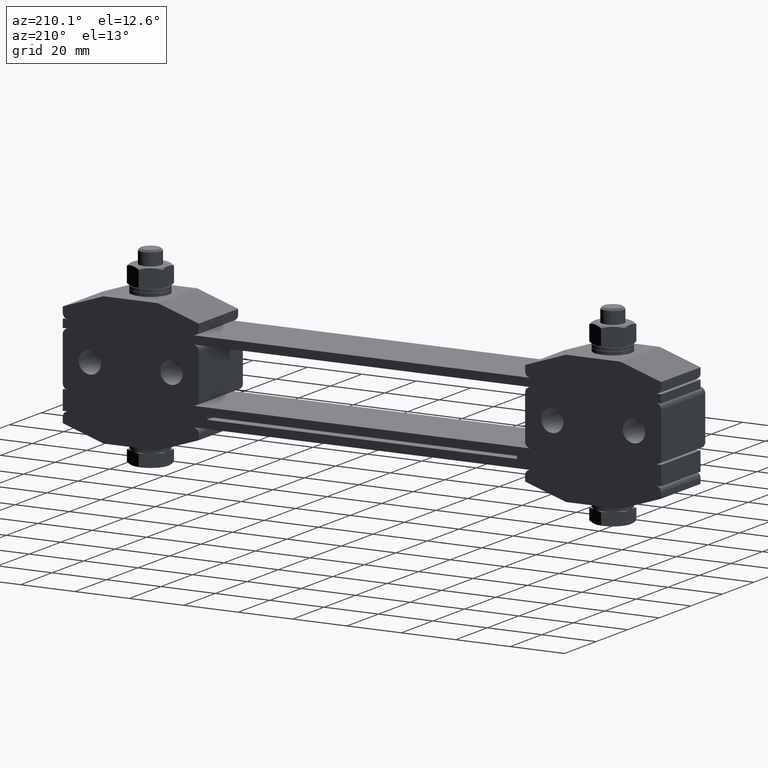
[diagram: clean part render]
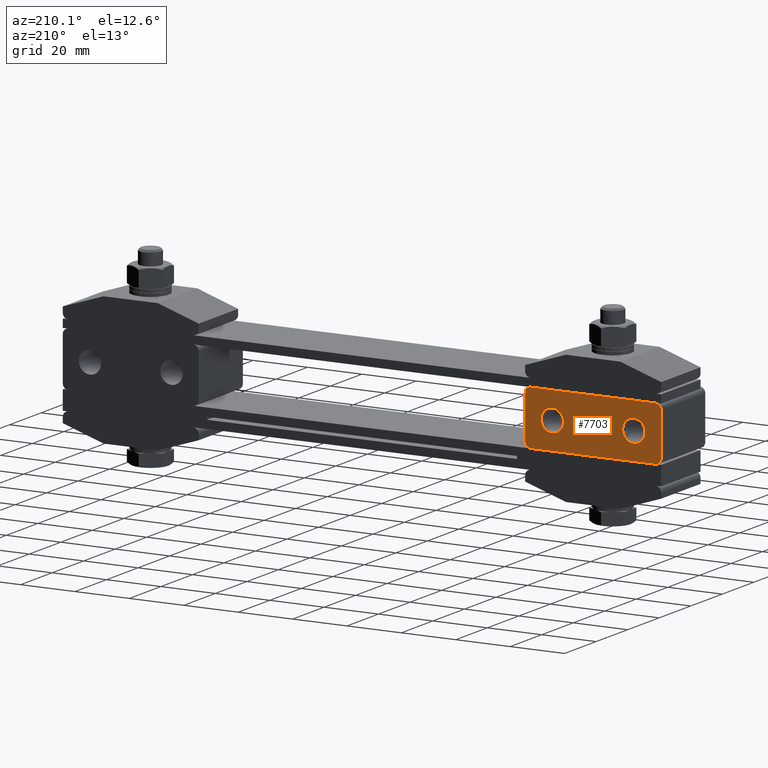
[diagram: same view with one face highlighted and labeled with its STEP entity id]
A machine part, auxiliary view. The second image highlights one B-rep face of the part: STEP entity #7703.
In plain terms, the highlighted planar face has unit normal (0, -1, 0).
Its self-contained STEP definition (entity closure, byte-faithful):
#303 = DIRECTION ( 'NONE',  ( 0.0000000000000000000, 0.0000000000000000000, -1.000000000000000000 ) ) ;
#580 = VECTOR ( 'NONE', #20998, 1000.000000000000000 ) ;
#686 = EDGE_LOOP ( 'NONE', ( #9995, #20720, #13385, #13030, #21070, #3321, #17903, #16423 ) ) ;
#725 = FACE_BOUND ( 'NONE', #20123, .T. ) ;
#752 = PLANE ( 'NONE',  #10879 ) ;
#813 = LINE ( 'NONE', #4874, #8814 ) ;
#874 = LINE ( 'NONE', #6729, #2200 ) ;
#938 = CARTESIAN_POINT ( 'NONE',  ( -108.0000000000000000, 12.50000000000000000, 21.00000000000000000 ) ) ;
#1806 = DIRECTION ( 'NONE',  ( 0.0000000000000000000, 0.0000000000000000000, -1.000000000000000000 ) ) ;
#1822 = CARTESIAN_POINT ( 'NONE',  ( -62.00000000000000000, 12.50000000000000000, 21.00000000000000000 ) ) ;
#2200 = VECTOR ( 'NONE', #15225, 1000.000000000000000 ) ;
#2491 = CIRCLE ( 'NONE', #20456, 4.100000000000001400 ) ;
#2528 = EDGE_CURVE ( 'NONE', #12375, #6076, #2491, .T. ) ;
#2570 = AXIS2_PLACEMENT_3D ( 'NONE', #17997, #12957, #7896 ) ;
#2633 = VERTEX_POINT ( 'NONE', #21164 ) ;
#2727 = VERTEX_POINT ( 'NONE', #4342 ) ;
#2893 = EDGE_CURVE ( 'NONE', #2633, #6873, #14211, .T. ) ;
#3250 = CIRCLE ( 'NONE', #11405, 2.000000000000000000 ) ;
#3321 = ORIENTED_EDGE ( 'NONE', *, *, #17572, .T. ) ;
#3382 = CARTESIAN_POINT ( 'NONE',  ( -62.00000000000000000, 12.50000000000000000, 3.000000000000000000 ) ) ;
#3397 = CARTESIAN_POINT ( 'NONE',  ( -60.00000000000000000, 12.50000000000000000, 3.000000000000000000 ) ) ;
#3492 = VERTEX_POINT ( 'NONE', #12404 ) ;
#3903 = DIRECTION ( 'NONE',  ( -2.386979502944085000E-015, 1.000000000000000000, -0.0000000000000000000 ) ) ;
#4277 = DIRECTION ( 'NONE',  ( 0.0000000000000000000, 0.0000000000000000000, 1.000000000000000000 ) ) ;
#4342 = CARTESIAN_POINT ( 'NONE',  ( -62.00000000000000000, 12.50000000000000000, 23.00000000000000000 ) ) ;
#4643 = CARTESIAN_POINT ( 'NONE',  ( -60.00000000000000000, 12.50000000000000000, 23.00000000000000000 ) ) ;
#4874 = CARTESIAN_POINT ( 'NONE',  ( -60.00000000000000000, 12.50000000000000000, 3.000000000000000000 ) ) ;
#5110 = CARTESIAN_POINT ( 'NONE',  ( -100.0000000000000000, 12.50000000000000000, 13.00000000000000000 ) ) ;
#5254 = DIRECTION ( 'NONE',  ( 0.0000000000000000000, 0.0000000000000000000, 1.000000000000000000 ) ) ;
#5317 = DIRECTION ( 'NONE',  ( 1.000000000000000000, -2.386979502944085000E-015, 0.0000000000000000000 ) ) ;
#5337 = CARTESIAN_POINT ( 'NONE',  ( -108.0000000000000000, 12.50000000000000000, 23.00000000000000000 ) ) ;
#5460 = CARTESIAN_POINT ( 'NONE',  ( -60.00000000000000000, 12.50000000000000000, 21.00000000000000000 ) ) ;
#5516 = EDGE_CURVE ( 'NONE', #19903, #2727, #9910, .T. ) ;
#5553 = DIRECTION ( 'NONE',  ( -2.386979502944085000E-015, 1.000000000000000000, 0.0000000000000000000 ) ) ;
#5572 = CIRCLE ( 'NONE', #2570, 2.000000000000000000 ) ;
#5625 = DIRECTION ( 'NONE',  ( 0.0000000000000000000, 0.0000000000000000000, -1.000000000000000000 ) ) ;
#5715 = CARTESIAN_POINT ( 'NONE',  ( -108.0000000000000000, 12.50000000000000000, 3.000000000000000000 ) ) ;
#6076 = VERTEX_POINT ( 'NONE', #20461 ) ;
#6344 = CARTESIAN_POINT ( 'NONE',  ( -70.00000000000000000, 12.50000000000000000, 8.899999999999998600 ) ) ;
#6729 = CARTESIAN_POINT ( 'NONE',  ( -60.00000000000000000, 12.50000000000000000, 3.000000000000000000 ) ) ;
#6873 = VERTEX_POINT ( 'NONE', #6344 ) ;
#7486 = DIRECTION ( 'NONE',  ( 0.0000000000000000000, 0.0000000000000000000, 1.000000000000000000 ) ) ;
#7703 = ADVANCED_FACE ( 'NONE', ( #20169, #725, #11128 ), #752, .F. ) ;
#7896 = DIRECTION ( 'NONE',  ( 0.0000000000000000000, 0.0000000000000000000, 1.000000000000000000 ) ) ;
#8057 = LINE ( 'NONE', #14323, #580 ) ;
#8290 = AXIS2_PLACEMENT_3D ( 'NONE', #10372, #20552, #1806 ) ;
#8335 = VERTEX_POINT ( 'NONE', #10083 ) ;
#8814 = VECTOR ( 'NONE', #5317, 1000.000000000000000 ) ;
#9040 = CARTESIAN_POINT ( 'NONE',  ( -62.00000000000000000, 12.50000000000000000, 5.000000000000000000 ) ) ;
#9910 = LINE ( 'NONE', #4643, #13119 ) ;
#9995 = ORIENTED_EDGE ( 'NONE', *, *, #10530, .T. ) ;
#10083 = CARTESIAN_POINT ( 'NONE',  ( -110.0000000000000000, 12.50000000000000000, 21.00000000000000000 ) ) ;
#10278 = EDGE_CURVE ( 'NONE', #2727, #15367, #19210, .T. ) ;
#10372 = CARTESIAN_POINT ( 'NONE',  ( -100.0000000000000000, 12.50000000000000000, 13.00000000000000000 ) ) ;
#10530 = EDGE_CURVE ( 'NONE', #19518, #8335, #8057, .T. ) ;
#10879 = AXIS2_PLACEMENT_3D ( 'NONE', #3397, #17041, #13321 ) ;
#11128 = FACE_OUTER_BOUND ( 'NONE', #686, .T. ) ;
#11405 = AXIS2_PLACEMENT_3D ( 'NONE', #9040, #3903, #7486 ) ;
#11511 = CARTESIAN_POINT ( 'NONE',  ( -70.00000000000000000, 12.50000000000000000, 13.00000000000000000 ) ) ;
#11835 = ORIENTED_EDGE ( 'NONE', *, *, #2528, .F. ) ;
#12156 = EDGE_CURVE ( 'NONE', #6873, #2633, #13580, .T. ) ;
#12375 = VERTEX_POINT ( 'NONE', #20820 ) ;
#12404 = CARTESIAN_POINT ( 'NONE',  ( -60.00000000000000000, 12.50000000000000000, 5.000000000000000000 ) ) ;
#12449 = EDGE_CURVE ( 'NONE', #18325, #19518, #5572, .T. ) ;
#12957 = DIRECTION ( 'NONE',  ( -2.386979502944085000E-015, 1.000000000000000000, -0.0000000000000000000 ) ) ;
#13030 = ORIENTED_EDGE ( 'NONE', *, *, #10278, .T. ) ;
#13119 = VECTOR ( 'NONE', #19797, 1000.000000000000000 ) ;
#13321 = DIRECTION ( 'NONE',  ( 0.0000000000000000000, 0.0000000000000000000, 1.000000000000000000 ) ) ;
#13385 = ORIENTED_EDGE ( 'NONE', *, *, #5516, .T. ) ;
#13444 = DIRECTION ( 'NONE',  ( 0.0000000000000000000, 0.0000000000000000000, -1.000000000000000000 ) ) ;
#13579 = ORIENTED_EDGE ( 'NONE', *, *, #12156, .F. ) ;
#13580 = CIRCLE ( 'NONE', #16713, 4.100000000000001400 ) ;
#13747 = DIRECTION ( 'NONE',  ( -2.386979502944085000E-015, 1.000000000000000000, -0.0000000000000000000 ) ) ;
#14211 = CIRCLE ( 'NONE', #20328, 4.100000000000001400 ) ;
#14323 = CARTESIAN_POINT ( 'NONE',  ( -110.0000000000000000, 12.50000000000000000, 3.000000000000000000 ) ) ;
#14492 = DIRECTION ( 'NONE',  ( -2.386979502944085000E-015, 1.000000000000000000, -0.0000000000000000000 ) ) ;
#15225 = DIRECTION ( 'NONE',  ( 0.0000000000000000000, 0.0000000000000000000, 1.000000000000000000 ) ) ;
#15367 = VERTEX_POINT ( 'NONE', #5460 ) ;
#15504 = CARTESIAN_POINT ( 'NONE',  ( -70.00000000000000000, 12.50000000000000000, 13.00000000000000000 ) ) ;
#15568 = DIRECTION ( 'NONE',  ( -2.386979502944085000E-015, 1.000000000000000000, 0.0000000000000000000 ) ) ;
#15610 = ORIENTED_EDGE ( 'NONE', *, *, #2893, .F. ) ;
#15955 = AXIS2_PLACEMENT_3D ( 'NONE', #938, #14492, #4277 ) ;
#16386 = EDGE_CURVE ( 'NONE', #3492, #15367, #874, .T. ) ;
#16423 = ORIENTED_EDGE ( 'NONE', *, *, #12449, .T. ) ;
#16713 = AXIS2_PLACEMENT_3D ( 'NONE', #15504, #15568, #303 ) ;
#16846 = CIRCLE ( 'NONE', #15955, 1.999999999999998200 ) ;
#17041 = DIRECTION ( 'NONE',  ( 2.386979502944085000E-015, -1.000000000000000000, 0.0000000000000000000 ) ) ;
#17203 = EDGE_LOOP ( 'NONE', ( #13579, #15610 ) ) ;
#17301 = EDGE_CURVE ( 'NONE', #8335, #19903, #16846, .T. ) ;
#17572 = EDGE_CURVE ( 'NONE', #3492, #21584, #3250, .T. ) ;
#17713 = CARTESIAN_POINT ( 'NONE',  ( -110.0000000000000000, 12.50000000000000000, 5.000000000000000000 ) ) ;
#17903 = ORIENTED_EDGE ( 'NONE', *, *, #18827, .F. ) ;
#17922 = EDGE_CURVE ( 'NONE', #6076, #12375, #19978, .T. ) ;
#17997 = CARTESIAN_POINT ( 'NONE',  ( -108.0000000000000000, 12.50000000000000000, 5.000000000000000000 ) ) ;
#18076 = ORIENTED_EDGE ( 'NONE', *, *, #17922, .F. ) ;
#18325 = VERTEX_POINT ( 'NONE', #5715 ) ;
#18827 = EDGE_CURVE ( 'NONE', #18325, #21584, #813, .T. ) ;
#19210 = CIRCLE ( 'NONE', #21916, 1.999999999999998200 ) ;
#19518 = VERTEX_POINT ( 'NONE', #17713 ) ;
#19797 = DIRECTION ( 'NONE',  ( 1.000000000000000000, -2.386979502944085000E-015, 0.0000000000000000000 ) ) ;
#19903 = VERTEX_POINT ( 'NONE', #5337 ) ;
#19978 = CIRCLE ( 'NONE', #8290, 4.100000000000001400 ) ;
#20123 = EDGE_LOOP ( 'NONE', ( #11835, #18076 ) ) ;
#20169 = FACE_BOUND ( 'NONE', #17203, .T. ) ;
#20191 = DIRECTION ( 'NONE',  ( -2.386979502944085000E-015, 1.000000000000000000, 0.0000000000000000000 ) ) ;
#20328 = AXIS2_PLACEMENT_3D ( 'NONE', #11511, #20191, #13444 ) ;
#20456 = AXIS2_PLACEMENT_3D ( 'NONE', #5110, #5553, #5625 ) ;
#20461 = CARTESIAN_POINT ( 'NONE',  ( -99.99999999999997200, 12.50000000000000000, 17.10000000000000100 ) ) ;
#20552 = DIRECTION ( 'NONE',  ( -2.386979502944085000E-015, 1.000000000000000000, 0.0000000000000000000 ) ) ;
#20720 = ORIENTED_EDGE ( 'NONE', *, *, #17301, .T. ) ;
#20820 = CARTESIAN_POINT ( 'NONE',  ( -100.0000000000000000, 12.50000000000000000, 8.899999999999998600 ) ) ;
#20998 = DIRECTION ( 'NONE',  ( 0.0000000000000000000, 0.0000000000000000000, 1.000000000000000000 ) ) ;
#21070 = ORIENTED_EDGE ( 'NONE', *, *, #16386, .F. ) ;
#21164 = CARTESIAN_POINT ( 'NONE',  ( -69.99999999999998600, 12.50000000000000000, 17.10000000000000100 ) ) ;
#21584 = VERTEX_POINT ( 'NONE', #3382 ) ;
#21916 = AXIS2_PLACEMENT_3D ( 'NONE', #1822, #13747, #5254 ) ;